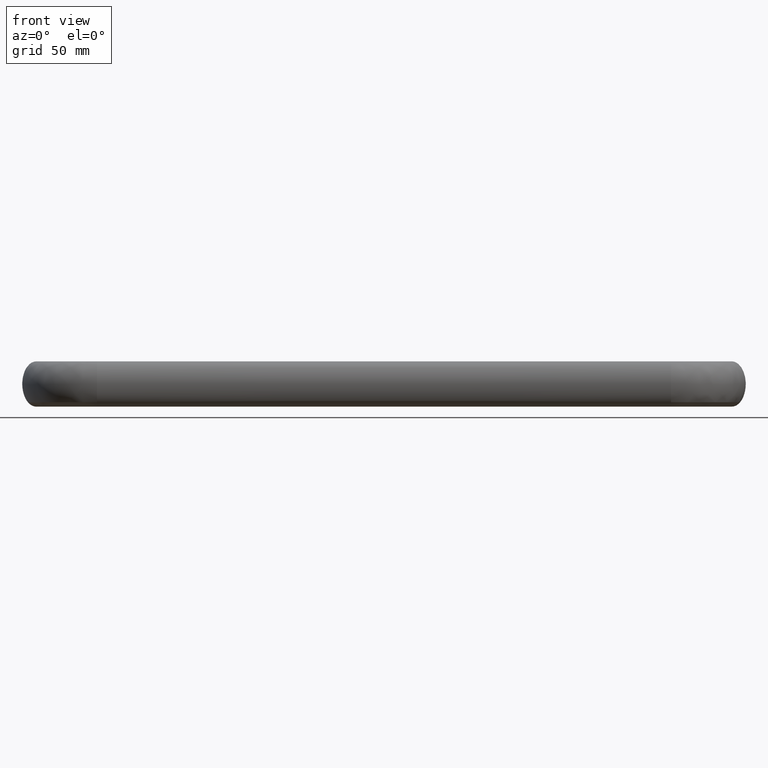
[diagram: clean part render]
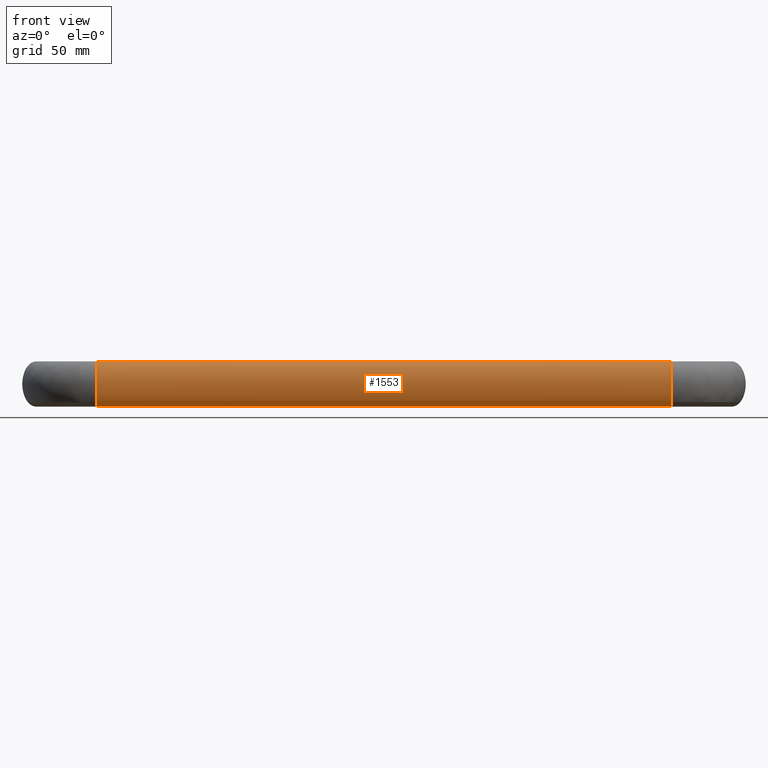
[diagram: same view with one face highlighted and labeled with its STEP entity id]
A machine part, front view. The second image highlights one B-rep face of the part: STEP entity #1553.
In plain terms, the highlighted face is a freeform B-spline surface patch.
Its self-contained STEP definition (entity closure, byte-faithful):
#1146=CARTESIAN_POINT('',(365.0,-48.0,13.0));
#1147=VERTEX_POINT('',#1146);
#1161=CARTESIAN_POINT('',(365.0,-52.702026031346250,-10.516608836256699));
#1162=VERTEX_POINT('',#1161);
#1163=CARTESIAN_POINT('',(365.0,-52.702026031346250,-10.516608836256699));
#1164=CARTESIAN_POINT('',(365.0,-53.040959230750353,-10.116656518417599));
#1165=CARTESIAN_POINT('',(365.0,-53.360662054242667,-9.673700472705871));
#1166=CARTESIAN_POINT('',(365.0,-55.137815228878502,-6.785826563922671));
#1167=CARTESIAN_POINT('',(365.0,-56.0,-3.403392041388941));
#1168=CARTESIAN_POINT('',(365.0,-56.0,3.403392041388945));
#1169=CARTESIAN_POINT('',(365.0,-55.137815228878502,6.785826563922671));
#1170=CARTESIAN_POINT('',(365.0,-52.916373759799299,10.395668951176340));
#1171=CARTESIAN_POINT('',(365.0,-52.028951842967203,11.359223048605340));
#1172=CARTESIAN_POINT('',(365.0,-50.093983074874203,12.661644796688099));
#1173=CARTESIAN_POINT('',(365.0,-49.047197551196597,13.0));
#1174=CARTESIAN_POINT('',(365.0,-48.0,13.0));
#1175=B_SPLINE_CURVE_WITH_KNOTS('',3,(#1163,#1164,#1165,#1166,#1167,#1168,#1169,#1170,#1171,#1172,#1173,#1174),.UNSPECIFIED.,.F.,.U.,(4,2,2,2,2,4),(0.600000000052966,0.625000000000000,0.750000000000000,0.875000000000000,0.937500000000000,1.0),.UNSPECIFIED.);
#1176=EDGE_CURVE('',#1162,#1147,#1175,.T.);
#1377=CARTESIAN_POINT('',(365.0,-48.0,-13.0));
#1378=VERTEX_POINT('',#1377);
#1379=CARTESIAN_POINT('',(365.0,-48.0,-13.0));
#1380=CARTESIAN_POINT('',(365.0,-49.047197551196597,-13.0));
#1381=CARTESIAN_POINT('',(365.0,-50.093983074874203,-12.661644796688099));
#1382=CARTESIAN_POINT('',(365.0,-51.641958090168508,-11.619707397670030));
#1383=CARTESIAN_POINT('',(365.0,-52.193626233137707,-11.116537311956140));
#1384=CARTESIAN_POINT('',(365.0,-52.702026031346250,-10.516608836256699));
#1385=B_SPLINE_CURVE_WITH_KNOTS('',3,(#1379,#1380,#1381,#1382,#1383,#1384),.UNSPECIFIED.,.F.,.U.,(4,2,4),(0.500000000000000,0.562500000000000,0.600000000052967),.UNSPECIFIED.);
#1386=EDGE_CURVE('',#1378,#1162,#1385,.T.);
#1388=CARTESIAN_POINT('',(365.0,-43.713650452200071,-10.975612390614710));
#1389=VERTEX_POINT('',#1388);
#1390=CARTESIAN_POINT('',(365.0,-43.713650452200071,-10.975612390614710));
#1391=CARTESIAN_POINT('',(365.0,-44.102646376464328,-11.376898705183009));
#1392=CARTESIAN_POINT('',(365.0,-44.512839411939630,-11.723901137961390));
#1393=CARTESIAN_POINT('',(365.0,-45.906016925125698,-12.661644796688099));
#1394=CARTESIAN_POINT('',(365.0,-46.952802448803403,-13.0));
#1395=CARTESIAN_POINT('',(365.0,-48.0,-13.0));
#1396=B_SPLINE_CURVE_WITH_KNOTS('',3,(#1390,#1391,#1392,#1393,#1394,#1395),.UNSPECIFIED.,.F.,.U.,(4,2,4),(0.409999999989719,0.437500000000000,0.500000000000000),.UNSPECIFIED.);
#1397=EDGE_CURVE('',#1389,#1378,#1396,.T.);
#1420=CARTESIAN_POINT('',(35.0,-43.713650452418257,-10.975612390839739));
#1421=CARTESIAN_POINT('',(35.0,-44.102646376771091,-11.376898705442461));
#1422=CARTESIAN_POINT('',(35.0,-44.512839412098842,-11.723901138068509));
#1423=CARTESIAN_POINT('',(35.0,-45.906016925125797,-12.661644796688099));
#1424=CARTESIAN_POINT('',(35.0,-46.952802448803403,-13.0));
#1425=CARTESIAN_POINT('',(35.0,-49.047197551196597,-13.0));
#1426=CARTESIAN_POINT('',(35.0,-50.093983074874203,-12.661644796688099));
#1427=CARTESIAN_POINT('',(35.0,-52.028951842967203,-11.359223048605360));
#1428=CARTESIAN_POINT('',(35.0,-52.916373759799299,-10.395668951176340));
#1429=CARTESIAN_POINT('',(35.0,-55.137815228878502,-6.785826563922671));
#1430=CARTESIAN_POINT('',(35.0,-56.0,-3.403392041388941));
#1431=CARTESIAN_POINT('',(35.0,-56.0,3.403392041388945));
#1432=CARTESIAN_POINT('',(35.0,-55.137815228878502,6.785826563922671));
#1433=CARTESIAN_POINT('',(35.0,-52.916373759799299,10.395668951176340));
#1434=CARTESIAN_POINT('',(35.0,-52.028951842967203,11.359223048605340));
#1435=CARTESIAN_POINT('',(35.0,-50.093983074874203,12.661644796688099));
#1436=CARTESIAN_POINT('',(35.0,-49.047197551196597,13.0));
#1437=CARTESIAN_POINT('',(35.0,-48.0,13.0));
#1438=CARTESIAN_POINT('',(144.999999965513010,-43.714384753910068,-10.975612390839739));
#1439=CARTESIAN_POINT('',(144.999999965048000,-44.103385630029010,-11.376898705442461));
#1440=CARTESIAN_POINT('',(144.999999964561400,-44.513583792853062,-11.723901138068509));
#1441=CARTESIAN_POINT('',(144.999999962921410,-45.906778410348402,-12.661644796688099));
#1442=CARTESIAN_POINT('',(144.999999961714790,-46.953576229709299,-13.0));
#1443=CARTESIAN_POINT('',(144.999999959352210,-49.047994846046997,-13.0));
#1444=CARTESIAN_POINT('',(144.999999958198200,-50.094791609730898,-12.661644796688099));
#1445=CARTESIAN_POINT('',(144.999999956110600,-52.029780318431001,-11.359223048605360));
#1446=CARTESIAN_POINT('',(144.999999955173390,-52.917211036129203,-10.395668951176340));
#1447=CARTESIAN_POINT('',(144.999999952881010,-55.138673647649398,-6.785826563922671));
#1448=CARTESIAN_POINT('',(144.999999952011590,-56.000866299829298,-3.403392041388941));
#1449=CARTESIAN_POINT('',(144.999999952011590,-56.000866299829298,3.403392041388945));
#1450=CARTESIAN_POINT('',(144.999999952881010,-55.138673647303001,6.785826563922671));
#1451=CARTESIAN_POINT('',(144.999999955173190,-52.917211035772603,10.395668951176340));
#1452=CARTESIAN_POINT('',(144.999999956110600,-52.029780318431001,11.359223048605340));
#1453=CARTESIAN_POINT('',(144.999999958198200,-50.094791609730898,12.661644796688099));
#1454=CARTESIAN_POINT('',(144.999999959352210,-49.047994846046997,13.0));
#1455=CARTESIAN_POINT('',(144.999999960533500,-48.000785537878151,13.0));
#1456=CARTESIAN_POINT('',(255.000000034487100,-43.714384754316640,-10.975612390839739));
#1457=CARTESIAN_POINT('',(255.000000034952110,-44.103385630433174,-11.376898705442461));
#1458=CARTESIAN_POINT('',(255.000000035438690,-44.513583793254732,-11.723901138068509));
#1459=CARTESIAN_POINT('',(255.000000037078510,-45.906778410741801,-12.661644796688099));
#1460=CARTESIAN_POINT('',(255.000000038285490,-46.953576230096701,-13.0));
#1461=CARTESIAN_POINT('',(255.000000040647990,-49.047994846423002,-13.0));
#1462=CARTESIAN_POINT('',(255.000000041802000,-50.094791610101403,-12.661644796688099));
#1463=CARTESIAN_POINT('',(255.000000043889490,-52.029780318791900,-11.359223048605360));
#1464=CARTESIAN_POINT('',(255.000000044826490,-52.917211036485803,-10.395668951176340));
#1465=CARTESIAN_POINT('',(255.000000047118990,-55.138673647995702,-6.785826563922671));
#1466=CARTESIAN_POINT('',(255.000000047988490,-56.000866300171701,-3.403392041388941));
#1467=CARTESIAN_POINT('',(255.000000047988490,-56.000866300171701,3.403392041388945));
#1468=CARTESIAN_POINT('',(255.000000047118990,-55.138673647995702,6.785826563922671));
#1469=CARTESIAN_POINT('',(255.000000044827000,-52.917211036129203,10.395668951176340));
#1470=CARTESIAN_POINT('',(255.000000043889490,-52.029780318791900,11.359223048605340));
#1471=CARTESIAN_POINT('',(255.000000041802000,-50.094791610101403,12.661644796688099));
#1472=CARTESIAN_POINT('',(255.000000040647990,-49.047994846423002,13.0));
#1473=CARTESIAN_POINT('',(255.000000039466810,-48.000785538259848,13.0));
#1474=CARTESIAN_POINT('',(365.0,-43.713650452418200,-10.975612390839739));
#1475=CARTESIAN_POINT('',(365.0,-44.102646376771020,-11.376898705442461));
#1476=CARTESIAN_POINT('',(365.0,-44.512839412098771,-11.723901138068509));
#1477=CARTESIAN_POINT('',(365.0,-45.906016925125698,-12.661644796688099));
#1478=CARTESIAN_POINT('',(365.0,-46.952802448803403,-13.0));
#1479=CARTESIAN_POINT('',(365.0,-49.047197551196597,-13.0));
#1480=CARTESIAN_POINT('',(365.0,-50.093983074874203,-12.661644796688099));
#1481=CARTESIAN_POINT('',(365.0,-52.028951842967203,-11.359223048605360));
#1482=CARTESIAN_POINT('',(365.0,-52.916373759799299,-10.395668951176340));
#1483=CARTESIAN_POINT('',(365.0,-55.137815228878502,-6.785826563922671));
#1484=CARTESIAN_POINT('',(365.0,-56.0,-3.403392041388941));
#1485=CARTESIAN_POINT('',(365.0,-56.0,3.403392041388945));
#1486=CARTESIAN_POINT('',(365.0,-55.137815228878502,6.785826563922671));
#1487=CARTESIAN_POINT('',(365.0,-52.916373759799299,10.395668951176340));
#1488=CARTESIAN_POINT('',(365.0,-52.028951842967203,11.359223048605340));
#1489=CARTESIAN_POINT('',(365.0,-50.093983074874203,12.661644796688099));
#1490=CARTESIAN_POINT('',(365.0,-49.047197551196597,13.0));
#1491=CARTESIAN_POINT('',(365.0,-48.0,13.0));
#1492=B_SPLINE_SURFACE_WITH_KNOTS('',3,3,((#1420,#1438,#1456,#1474),(#1421,#1439,#1457,#1475),(#1422,#1440,#1458,#1476),(#1423,#1441,#1459,#1477),(#1424,#1442,#1460,#1478),(#1425,#1443,#1461,#1479),(#1426,#1444,#1462,#1480),(#1427,#1445,#1463,#1481),(#1428,#1446,#1464,#1482),(#1429,#1447,#1465,#1483),(#1430,#1448,#1466,#1484),(#1431,#1449,#1467,#1485),(#1432,#1450,#1468,#1486),(#1433,#1451,#1469,#1487),(#1434,#1452,#1470,#1488),(#1435,#1453,#1471,#1489),(#1436,#1454,#1472,#1490),(#1437,#1455,#1473,#1491)),.UNSPECIFIED.,.F.,.F.,.U.,(4,2,2,2,2,2,2,2,4),(4,4),(0.0,2.196938565026394,7.189980758268192,12.183022951509990,17.176065144751789,27.162149531235389,37.148233917718983,42.141276110960789,47.134318304202587),(0.0,330.000000048836910),.UNSPECIFIED.);
#1493=ORIENTED_EDGE('',*,*,#1397,.T.);
#1494=ORIENTED_EDGE('',*,*,#1386,.T.);
#1495=ORIENTED_EDGE('',*,*,#1176,.T.);
#1496=CARTESIAN_POINT('',(35.0,-48.0,13.0));
#1497=VERTEX_POINT('',#1496);
#1498=CARTESIAN_POINT('',(35.0,-48.0,13.0));
#1499=CARTESIAN_POINT('',(144.999999960533500,-48.000785537878151,13.0));
#1500=CARTESIAN_POINT('',(255.000000039466810,-48.000785538259848,13.0));
#1501=CARTESIAN_POINT('',(365.0,-48.0,13.0));
#1502=B_SPLINE_CURVE_WITH_KNOTS('',3,(#1498,#1499,#1500,#1501),.UNSPECIFIED.,.F.,.U.,(4,4),(0.145889116031270,0.854110883968730),.UNSPECIFIED.);
#1503=EDGE_CURVE('',#1497,#1147,#1502,.T.);
#1504=ORIENTED_EDGE('',*,*,#1503,.F.);
#1505=CARTESIAN_POINT('',(35.0,-52.702026031346250,-10.516608836256699));
#1506=VERTEX_POINT('',#1505);
#1507=CARTESIAN_POINT('',(35.0,-52.702026031346250,-10.516608836256699));
#1508=CARTESIAN_POINT('',(35.0,-53.040959230750353,-10.116656518417599));
#1509=CARTESIAN_POINT('',(35.0,-53.360662054242667,-9.673700472705871));
#1510=CARTESIAN_POINT('',(35.0,-55.137815228878502,-6.785826563922671));
#1511=CARTESIAN_POINT('',(35.0,-56.0,-3.403392041388941));
#1512=CARTESIAN_POINT('',(35.0,-56.0,3.403392041388945));
#1513=CARTESIAN_POINT('',(35.0,-55.137815228878502,6.785826563922671));
#1514=CARTESIAN_POINT('',(35.0,-52.916373759799299,10.395668951176340));
#1515=CARTESIAN_POINT('',(35.0,-52.028951842967203,11.359223048605340));
#1516=CARTESIAN_POINT('',(35.0,-50.093983074874203,12.661644796688099));
#1517=CARTESIAN_POINT('',(35.0,-49.047197551196597,13.0));
#1518=CARTESIAN_POINT('',(35.0,-48.0,13.0));
#1519=B_SPLINE_CURVE_WITH_KNOTS('',3,(#1507,#1508,#1509,#1510,#1511,#1512,#1513,#1514,#1515,#1516,#1517,#1518),.UNSPECIFIED.,.F.,.U.,(4,2,2,2,2,4),(0.600000000052966,0.625000000000000,0.750000000000000,0.875000000000000,0.937500000000000,1.0),.UNSPECIFIED.);
#1520=EDGE_CURVE('',#1506,#1497,#1519,.T.);
#1521=ORIENTED_EDGE('',*,*,#1520,.F.);
#1522=CARTESIAN_POINT('',(35.0,-48.0,-13.0));
#1523=VERTEX_POINT('',#1522);
#1524=CARTESIAN_POINT('',(35.0,-48.0,-13.0));
#1525=CARTESIAN_POINT('',(35.0,-49.047197551196597,-13.0));
#1526=CARTESIAN_POINT('',(35.0,-50.093983074874203,-12.661644796688099));
#1527=CARTESIAN_POINT('',(35.0,-51.641958090168508,-11.619707397670030));
#1528=CARTESIAN_POINT('',(35.0,-52.193626233137707,-11.116537311956140));
#1529=CARTESIAN_POINT('',(35.0,-52.702026031346250,-10.516608836256699));
#1530=B_SPLINE_CURVE_WITH_KNOTS('',3,(#1524,#1525,#1526,#1527,#1528,#1529),.UNSPECIFIED.,.F.,.U.,(4,2,4),(0.500000000000000,0.562500000000000,0.600000000052967),.UNSPECIFIED.);
#1531=EDGE_CURVE('',#1523,#1506,#1530,.T.);
#1532=ORIENTED_EDGE('',*,*,#1531,.F.);
#1533=CARTESIAN_POINT('',(35.0,-43.713650452200127,-10.975612390614710));
#1534=VERTEX_POINT('',#1533);
#1535=CARTESIAN_POINT('',(35.0,-43.713650452200127,-10.975612390614710));
#1536=CARTESIAN_POINT('',(35.0,-44.102646376464392,-11.376898705183009));
#1537=CARTESIAN_POINT('',(35.0,-44.512839411939687,-11.723901137961390));
#1538=CARTESIAN_POINT('',(35.0,-45.906016925125797,-12.661644796688099));
#1539=CARTESIAN_POINT('',(35.0,-46.952802448803403,-13.0));
#1540=CARTESIAN_POINT('',(35.0,-48.0,-13.0));
#1541=B_SPLINE_CURVE_WITH_KNOTS('',3,(#1535,#1536,#1537,#1538,#1539,#1540),.UNSPECIFIED.,.F.,.U.,(4,2,4),(0.409999999989719,0.437500000000000,0.500000000000000),.UNSPECIFIED.);
#1542=EDGE_CURVE('',#1534,#1523,#1541,.T.);
#1543=ORIENTED_EDGE('',*,*,#1542,.F.);
#1544=CARTESIAN_POINT('',(35.0,-43.713650452200127,-10.975612390614710));
#1545=CARTESIAN_POINT('',(144.999999965513010,-43.714384753910061,-10.975612390839739));
#1546=CARTESIAN_POINT('',(255.000000034487100,-43.714384754316640,-10.975612390839739));
#1547=CARTESIAN_POINT('',(365.0,-43.713650452200071,-10.975612390614710));
#1548=B_SPLINE_CURVE_WITH_KNOTS('',3,(#1544,#1545,#1546,#1547),.UNSPECIFIED.,.F.,.U.,(4,4),(0.145889116031270,0.854110883968730),.UNSPECIFIED.);
#1549=EDGE_CURVE('',#1534,#1389,#1548,.T.);
#1550=ORIENTED_EDGE('',*,*,#1549,.T.);
#1551=EDGE_LOOP('',(#1493,#1494,#1495,#1504,#1521,#1532,#1543,#1550));
#1552=FACE_OUTER_BOUND('',#1551,.T.);
#1553=ADVANCED_FACE('',(#1552),#1492,.F.);